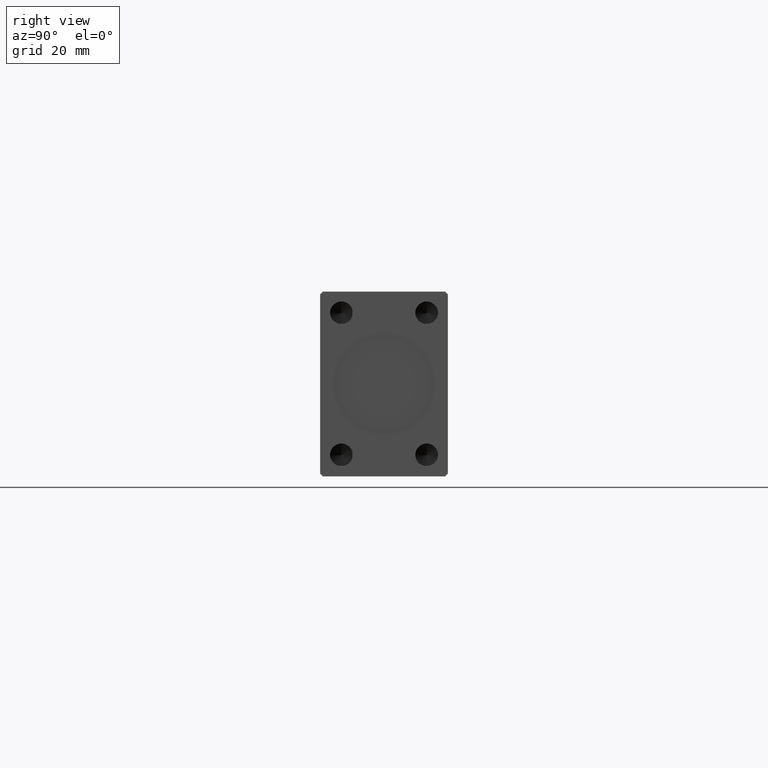
[diagram: clean part render]
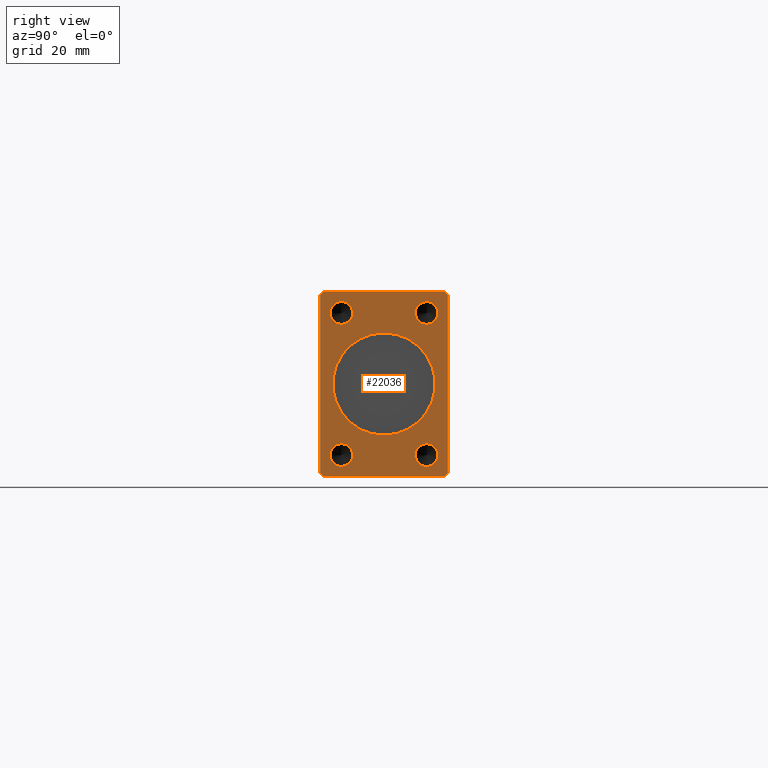
[diagram: same view with one face highlighted and labeled with its STEP entity id]
A machine part, right view. The second image highlights one B-rep face of the part: STEP entity #22036.
In plain terms, the highlighted planar face has unit normal (1, 0, 0).
Its self-contained STEP definition (entity closure, byte-faithful):
#881 = EDGE_LOOP ( 'NONE', ( #34645, #31311 ) ) ;
#935 = EDGE_CURVE ( 'NONE', #20428, #14172, #8098, .T. ) ;
#1018 = CARTESIAN_POINT ( 'NONE',  ( 238.0000000000000000, -14.99999999999999645, 24.99999999999999645 ) ) ;
#1187 = CARTESIAN_POINT ( 'NONE',  ( 238.0000000000000000, 0.000000000000000000, 0.000000000000000000 ) ) ;
#1634 = ORIENTED_EDGE ( 'NONE', *, *, #935, .F. ) ;
#2319 = CARTESIAN_POINT ( 'NONE',  ( 238.0000000000000000, 15.00000000000000355, 29.00000000000000000 ) ) ;
#2495 = VERTEX_POINT ( 'NONE', #23129 ) ;
#2926 = CARTESIAN_POINT ( 'NONE',  ( 238.0000000000000000, -14.99999999999999645, -28.99999999999999645 ) ) ;
#4324 = VECTOR ( 'NONE', #5366, 1000.000000000000114 ) ;
#4397 = CARTESIAN_POINT ( 'NONE',  ( 238.0000000000000000, -22.50000000000001421, -31.50000000000000711 ) ) ;
#4509 = CIRCLE ( 'NONE', #29454, 4.000000000000000000 ) ;
#4517 = DIRECTION ( 'NONE',  ( 0.000000000000000000, 0.000000000000000000, -1.000000000000000000 ) ) ;
#4661 = FACE_BOUND ( 'NONE', #30564, .T. ) ;
#4778 = ORIENTED_EDGE ( 'NONE', *, *, #31883, .F. ) ;
#4799 = DIRECTION ( 'NONE',  ( 0.000000000000000000, 0.000000000000000000, -1.000000000000000000 ) ) ;
#5103 = DIRECTION ( 'NONE',  ( 0.000000000000000000, 0.000000000000000000, -1.000000000000000000 ) ) ;
#5263 = EDGE_CURVE ( 'NONE', #23686, #14471, #10052, .T. ) ;
#5366 = DIRECTION ( 'NONE',  ( 0.000000000000000000, -0.7071067811865474617, 0.7071067811865474617 ) ) ;
#5764 = DIRECTION ( 'NONE',  ( 1.000000000000000000, -0.000000000000000000, -0.000000000000000000 ) ) ;
#6123 = EDGE_CURVE ( 'NONE', #11133, #29695, #15967, .T. ) ;
#6221 = EDGE_CURVE ( 'NONE', #27461, #16391, #22184, .T. ) ;
#6274 = ORIENTED_EDGE ( 'NONE', *, *, #31479, .T. ) ;
#6841 = CARTESIAN_POINT ( 'NONE',  ( 238.0000000000000000, -14.99999999999999645, -24.99999999999999645 ) ) ;
#6906 = DIRECTION ( 'NONE',  ( 0.000000000000000000, 0.7071067811865451302, -0.7071067811865500152 ) ) ;
#6953 = CIRCLE ( 'NONE', #16930, 4.000000000000000000 ) ;
#8079 = CARTESIAN_POINT ( 'NONE',  ( 238.0000000000000000, -14.99999999999999645, -24.99999999999999645 ) ) ;
#8098 = CIRCLE ( 'NONE', #37299, 4.000000000000000000 ) ;
#8387 = DIRECTION ( 'NONE',  ( 0.000000000000000000, 0.000000000000000000, -1.000000000000000000 ) ) ;
#8450 = CARTESIAN_POINT ( 'NONE',  ( 238.0000000000000000, 0.000000000000000000, 0.000000000000000000 ) ) ;
#8488 = LINE ( 'NONE', #35471, #4324 ) ;
#8610 = CARTESIAN_POINT ( 'NONE',  ( 238.0000000000000000, 15.00000000000000355, -24.99999999999999289 ) ) ;
#8716 = CARTESIAN_POINT ( 'NONE',  ( 238.0000000000000000, 15.00000000000000355, 25.00000000000000000 ) ) ;
#9487 = DIRECTION ( 'NONE',  ( 0.000000000000000000, 1.000000000000000000, 1.613696256722610912E-16 ) ) ;
#9585 = CARTESIAN_POINT ( 'NONE',  ( 238.0000000000000000, 21.49999999999999645, 32.50000000000000000 ) ) ;
#10052 = LINE ( 'NONE', #43959, #40389 ) ;
#10077 = ORIENTED_EDGE ( 'NONE', *, *, #11900, .F. ) ;
#10158 = ORIENTED_EDGE ( 'NONE', *, *, #19120, .F. ) ;
#10320 = VERTEX_POINT ( 'NONE', #37418 ) ;
#10675 = VERTEX_POINT ( 'NONE', #29364 ) ;
#11133 = VERTEX_POINT ( 'NONE', #36328 ) ;
#11442 = CARTESIAN_POINT ( 'NONE',  ( 238.0000000000000000, 2.204364238465235428E-15, 18.00000000000000000 ) ) ;
#11616 = DIRECTION ( 'NONE',  ( 1.000000000000000000, -0.000000000000000000, -0.000000000000000000 ) ) ;
#11786 = FACE_BOUND ( 'NONE', #881, .T. ) ;
#11900 = EDGE_CURVE ( 'NONE', #26770, #2495, #38817, .T. ) ;
#12001 = CARTESIAN_POINT ( 'NONE',  ( 238.0000000000000000, 21.49999999999999645, -32.50000000000000000 ) ) ;
#12224 = EDGE_CURVE ( 'NONE', #23952, #27461, #33873, .T. ) ;
#12450 = DIRECTION ( 'NONE',  ( 0.000000000000000000, 0.000000000000000000, -1.000000000000000000 ) ) ;
#12818 = LINE ( 'NONE', #42715, #15729 ) ;
#12928 = CIRCLE ( 'NONE', #42118, 4.000000000000000000 ) ;
#13201 = EDGE_CURVE ( 'NONE', #15004, #10320, #35928, .T. ) ;
#13361 = CIRCLE ( 'NONE', #28316, 4.000000000000000000 ) ;
#14172 = VERTEX_POINT ( 'NONE', #2926 ) ;
#14471 = VERTEX_POINT ( 'NONE', #21343 ) ;
#15004 = VERTEX_POINT ( 'NONE', #2319 ) ;
#15242 = DIRECTION ( 'NONE',  ( 0.000000000000000000, 0.7071067811865474617, 0.7071067811865474617 ) ) ;
#15445 = CARTESIAN_POINT ( 'NONE',  ( 238.0000000000000000, -22.50000000000001776, 31.50000000000000000 ) ) ;
#15729 = VECTOR ( 'NONE', #9487, 1000.000000000000000 ) ;
#15967 = CIRCLE ( 'NONE', #30887, 4.000000000000000000 ) ;
#15971 = AXIS2_PLACEMENT_3D ( 'NONE', #8716, #11616, #21882 ) ;
#16391 = VERTEX_POINT ( 'NONE', #15445 ) ;
#16930 = AXIS2_PLACEMENT_3D ( 'NONE', #19373, #5764, #12450 ) ;
#17013 = ORIENTED_EDGE ( 'NONE', *, *, #13201, .F. ) ;
#17089 = CARTESIAN_POINT ( 'NONE',  ( 238.0000000000000000, 15.00000000000000355, -20.99999999999999289 ) ) ;
#17112 = DIRECTION ( 'NONE',  ( 1.000000000000000000, -0.000000000000000000, -0.000000000000000000 ) ) ;
#17713 = DIRECTION ( 'NONE',  ( 0.000000000000000000, 0.000000000000000000, -1.000000000000000000 ) ) ;
#18260 = EDGE_CURVE ( 'NONE', #29695, #11133, #13361, .T. ) ;
#18714 = CIRCLE ( 'NONE', #28674, 18.00000000000000000 ) ;
#18832 = DIRECTION ( 'NONE',  ( 0.000000000000000000, -0.7071067811865474617, -0.7071067811865474617 ) ) ;
#19120 = EDGE_CURVE ( 'NONE', #10320, #15004, #6953, .T. ) ;
#19373 = CARTESIAN_POINT ( 'NONE',  ( 238.0000000000000000, 15.00000000000000355, 25.00000000000000000 ) ) ;
#19604 = AXIS2_PLACEMENT_3D ( 'NONE', #33708, #27239, #23684 ) ;
#20254 = AXIS2_PLACEMENT_3D ( 'NONE', #31115, #41382, #24435 ) ;
#20428 = VERTEX_POINT ( 'NONE', #36722 ) ;
#20441 = CARTESIAN_POINT ( 'NONE',  ( 238.0000000000000000, 21.49999999999999645, 32.50000000000000000 ) ) ;
#20484 = EDGE_CURVE ( 'NONE', #16391, #23686, #23992, .T. ) ;
#20898 = DIRECTION ( 'NONE',  ( 0.000000000000000000, 0.000000000000000000, -1.000000000000000000 ) ) ;
#21288 = AXIS2_PLACEMENT_3D ( 'NONE', #8450, #25395, #5103 ) ;
#21343 = CARTESIAN_POINT ( 'NONE',  ( 238.0000000000000000, -21.50000000000001776, -32.50000000000000711 ) ) ;
#21476 = DIRECTION ( 'NONE',  ( 1.000000000000000000, -0.000000000000000000, -0.000000000000000000 ) ) ;
#21516 = CARTESIAN_POINT ( 'NONE',  ( 238.0000000000000000, -21.50000000000001421, 32.50000000000000000 ) ) ;
#21778 = CARTESIAN_POINT ( 'NONE',  ( 238.0000000000000000, 22.49999999999999645, -31.50000000000000000 ) ) ;
#21882 = DIRECTION ( 'NONE',  ( 0.000000000000000000, 0.000000000000000000, -1.000000000000000000 ) ) ;
#21938 = CARTESIAN_POINT ( 'NONE',  ( 238.0000000000000000, 21.49999999999999645, -32.50000000000000000 ) ) ;
#22036 = ADVANCED_FACE ( 'NONE', ( #4661, #35430, #35878, #28307, #11786, #38998 ), #39444, .T. ) ;
#22184 = LINE ( 'NONE', #21516, #34457 ) ;
#22223 = DIRECTION ( 'NONE',  ( 1.000000000000000000, -0.000000000000000000, -0.000000000000000000 ) ) ;
#22669 = VECTOR ( 'NONE', #30682, 1000.000000000000000 ) ;
#22906 = ORIENTED_EDGE ( 'NONE', *, *, #5263, .T. ) ;
#23129 = CARTESIAN_POINT ( 'NONE',  ( 238.0000000000000000, 0.000000000000000000, -18.00000000000000000 ) ) ;
#23592 = EDGE_LOOP ( 'NONE', ( #6274, #28207, #40199, #42479, #22906, #32643, #33938, #27899 ) ) ;
#23684 = DIRECTION ( 'NONE',  ( 0.000000000000000000, 0.000000000000000000, -1.000000000000000000 ) ) ;
#23686 = VERTEX_POINT ( 'NONE', #4397 ) ;
#23783 = CARTESIAN_POINT ( 'NONE',  ( 238.0000000000000000, -22.50000000000001776, 31.50000000000000000 ) ) ;
#23952 = VERTEX_POINT ( 'NONE', #20441 ) ;
#23992 = LINE ( 'NONE', #23783, #22669 ) ;
#24435 = DIRECTION ( 'NONE',  ( 0.000000000000000000, 0.000000000000000000, -1.000000000000000000 ) ) ;
#24453 = CARTESIAN_POINT ( 'NONE',  ( 238.0000000000000000, -21.50000000000001421, 32.50000000000000000 ) ) ;
#25395 = DIRECTION ( 'NONE',  ( 1.000000000000000000, 0.000000000000000000, 0.000000000000000000 ) ) ;
#26770 = VERTEX_POINT ( 'NONE', #11442 ) ;
#26975 = DIRECTION ( 'NONE',  ( 0.000000000000000000, -1.000000000000000000, 0.000000000000000000 ) ) ;
#27117 = DIRECTION ( 'NONE',  ( 0.000000000000000000, 0.000000000000000000, -1.000000000000000000 ) ) ;
#27239 = DIRECTION ( 'NONE',  ( 1.000000000000000000, 0.000000000000000000, 0.000000000000000000 ) ) ;
#27461 = VERTEX_POINT ( 'NONE', #24453 ) ;
#27532 = DIRECTION ( 'NONE',  ( 1.000000000000000000, 0.000000000000000000, 0.000000000000000000 ) ) ;
#27866 = ORIENTED_EDGE ( 'NONE', *, *, #39603, .F. ) ;
#27899 = ORIENTED_EDGE ( 'NONE', *, *, #37152, .T. ) ;
#28207 = ORIENTED_EDGE ( 'NONE', *, *, #12224, .T. ) ;
#28307 = FACE_BOUND ( 'NONE', #39835, .T. ) ;
#28316 = AXIS2_PLACEMENT_3D ( 'NONE', #8610, #22223, #8387 ) ;
#28674 = AXIS2_PLACEMENT_3D ( 'NONE', #1187, #27532, #17713 ) ;
#29111 = VERTEX_POINT ( 'NONE', #41330 ) ;
#29364 = CARTESIAN_POINT ( 'NONE',  ( 238.0000000000000000, -14.99999999999999645, 20.99999999999999645 ) ) ;
#29454 = AXIS2_PLACEMENT_3D ( 'NONE', #1018, #31563, #4799 ) ;
#29695 = VERTEX_POINT ( 'NONE', #17089 ) ;
#30435 = EDGE_LOOP ( 'NONE', ( #10158, #17013 ) ) ;
#30477 = CARTESIAN_POINT ( 'NONE',  ( 238.0000000000000000, 22.49999999999999645, -31.50000000000000000 ) ) ;
#30564 = EDGE_LOOP ( 'NONE', ( #27866, #10077 ) ) ;
#30682 = DIRECTION ( 'NONE',  ( 0.000000000000000000, 5.507058653894625853E-17, -1.000000000000000000 ) ) ;
#30887 = AXIS2_PLACEMENT_3D ( 'NONE', #37367, #34672, #27117 ) ;
#30901 = DIRECTION ( 'NONE',  ( 0.000000000000000000, 0.000000000000000000, 1.000000000000000000 ) ) ;
#31115 = CARTESIAN_POINT ( 'NONE',  ( 238.0000000000000000, -14.99999999999999645, 24.99999999999999645 ) ) ;
#31311 = ORIENTED_EDGE ( 'NONE', *, *, #43137, .F. ) ;
#31479 = EDGE_CURVE ( 'NONE', #42520, #23952, #8488, .T. ) ;
#31563 = DIRECTION ( 'NONE',  ( 1.000000000000000000, -0.000000000000000000, -0.000000000000000000 ) ) ;
#31883 = EDGE_CURVE ( 'NONE', #14172, #20428, #12928, .T. ) ;
#32587 = VERTEX_POINT ( 'NONE', #12001 ) ;
#32643 = ORIENTED_EDGE ( 'NONE', *, *, #43340, .T. ) ;
#33329 = CARTESIAN_POINT ( 'NONE',  ( 238.0000000000000000, 22.49999999999999645, 31.50000000000000000 ) ) ;
#33708 = CARTESIAN_POINT ( 'NONE',  ( 238.0000000000000000, 0.000000000000000000, 0.000000000000000000 ) ) ;
#33819 = LINE ( 'NONE', #30477, #41589 ) ;
#33873 = LINE ( 'NONE', #9585, #40984 ) ;
#33938 = ORIENTED_EDGE ( 'NONE', *, *, #35140, .T. ) ;
#34457 = VECTOR ( 'NONE', #18832, 1000.000000000000114 ) ;
#34645 = ORIENTED_EDGE ( 'NONE', *, *, #37200, .F. ) ;
#34672 = DIRECTION ( 'NONE',  ( 1.000000000000000000, -0.000000000000000000, -0.000000000000000000 ) ) ;
#34750 = ORIENTED_EDGE ( 'NONE', *, *, #6123, .F. ) ;
#34954 = ORIENTED_EDGE ( 'NONE', *, *, #18260, .F. ) ;
#35140 = EDGE_CURVE ( 'NONE', #32587, #36871, #42665, .T. ) ;
#35430 = FACE_BOUND ( 'NONE', #30435, .T. ) ;
#35471 = CARTESIAN_POINT ( 'NONE',  ( 238.0000000000000000, 22.49999999999999645, 31.50000000000000000 ) ) ;
#35878 = FACE_BOUND ( 'NONE', #40620, .T. ) ;
#35928 = CIRCLE ( 'NONE', #15971, 4.000000000000000000 ) ;
#36328 = CARTESIAN_POINT ( 'NONE',  ( 238.0000000000000000, 15.00000000000000355, -28.99999999999999289 ) ) ;
#36722 = CARTESIAN_POINT ( 'NONE',  ( 238.0000000000000000, -14.99999999999999645, -20.99999999999999645 ) ) ;
#36871 = VERTEX_POINT ( 'NONE', #21778 ) ;
#37152 = EDGE_CURVE ( 'NONE', #36871, #42520, #33819, .T. ) ;
#37200 = EDGE_CURVE ( 'NONE', #10675, #29111, #37331, .T. ) ;
#37299 = AXIS2_PLACEMENT_3D ( 'NONE', #8079, #21476, #4517 ) ;
#37331 = CIRCLE ( 'NONE', #20254, 4.000000000000000000 ) ;
#37367 = CARTESIAN_POINT ( 'NONE',  ( 238.0000000000000000, 15.00000000000000355, -24.99999999999999289 ) ) ;
#37418 = CARTESIAN_POINT ( 'NONE',  ( 238.0000000000000000, 15.00000000000000355, 21.00000000000000000 ) ) ;
#38817 = CIRCLE ( 'NONE', #19604, 18.00000000000000000 ) ;
#38998 = FACE_OUTER_BOUND ( 'NONE', #23592, .T. ) ;
#39444 = PLANE ( 'NONE',  #21288 ) ;
#39603 = EDGE_CURVE ( 'NONE', #2495, #26770, #18714, .T. ) ;
#39835 = EDGE_LOOP ( 'NONE', ( #34750, #34954 ) ) ;
#40199 = ORIENTED_EDGE ( 'NONE', *, *, #6221, .T. ) ;
#40389 = VECTOR ( 'NONE', #6906, 1000.000000000000114 ) ;
#40620 = EDGE_LOOP ( 'NONE', ( #4778, #1634 ) ) ;
#40754 = VECTOR ( 'NONE', #15242, 1000.000000000000114 ) ;
#40984 = VECTOR ( 'NONE', #26975, 1000.000000000000000 ) ;
#41330 = CARTESIAN_POINT ( 'NONE',  ( 238.0000000000000000, -14.99999999999999645, 28.99999999999999645 ) ) ;
#41382 = DIRECTION ( 'NONE',  ( 1.000000000000000000, -0.000000000000000000, -0.000000000000000000 ) ) ;
#41589 = VECTOR ( 'NONE', #30901, 1000.000000000000000 ) ;
#42118 = AXIS2_PLACEMENT_3D ( 'NONE', #6841, #17112, #20898 ) ;
#42479 = ORIENTED_EDGE ( 'NONE', *, *, #20484, .T. ) ;
#42520 = VERTEX_POINT ( 'NONE', #33329 ) ;
#42665 = LINE ( 'NONE', #21938, #40754 ) ;
#42715 = CARTESIAN_POINT ( 'NONE',  ( 238.0000000000000000, -21.50000000000001776, -32.50000000000000711 ) ) ;
#43137 = EDGE_CURVE ( 'NONE', #29111, #10675, #4509, .T. ) ;
#43340 = EDGE_CURVE ( 'NONE', #14471, #32587, #12818, .T. ) ;
#43959 = CARTESIAN_POINT ( 'NONE',  ( 238.0000000000000000, -22.50000000000001421, -31.50000000000000711 ) ) ;